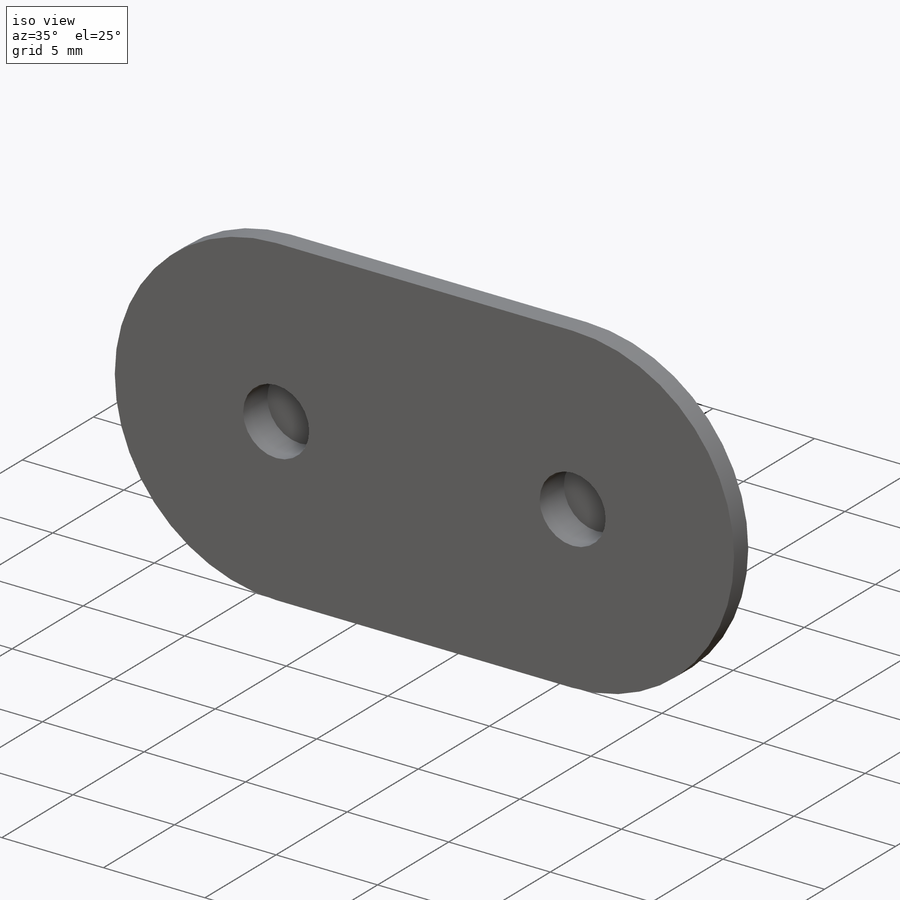
[diagram: iso view]
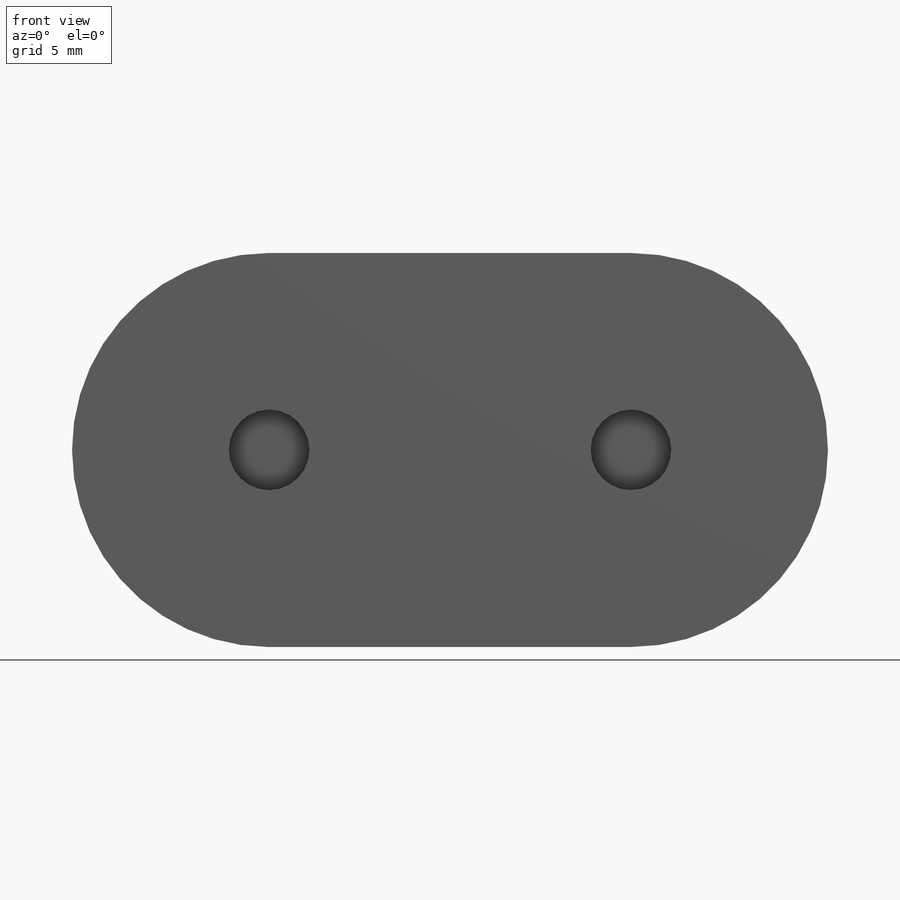
[diagram: front view]
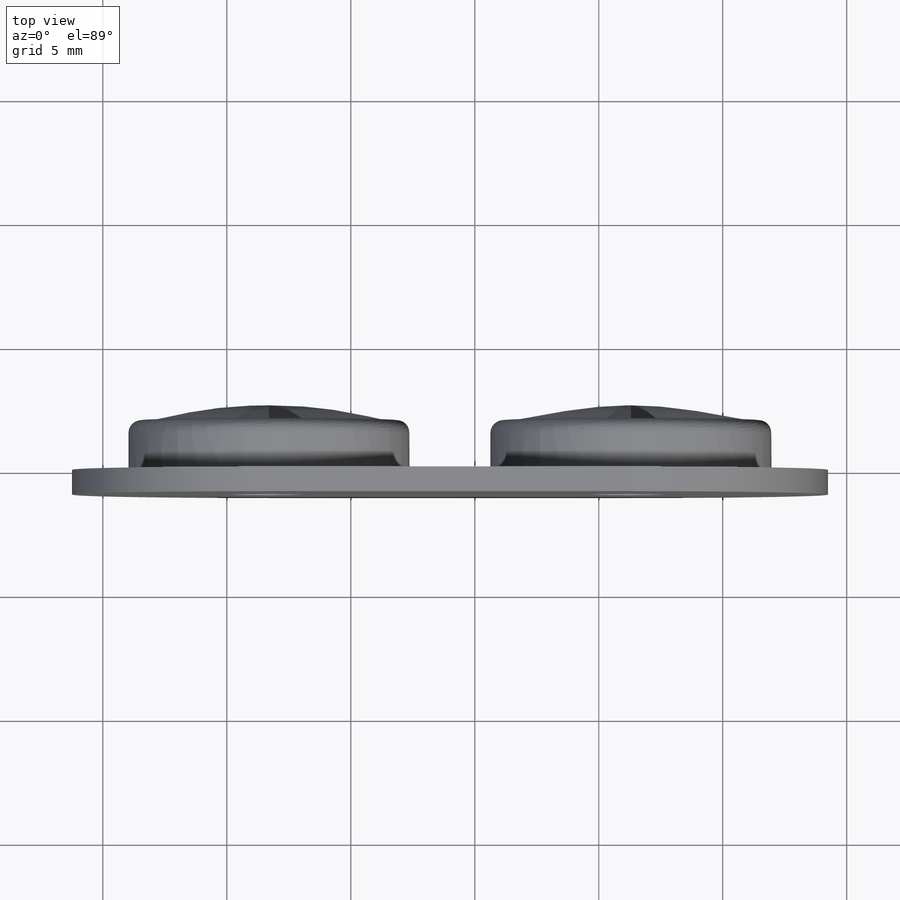
[diagram: top view]
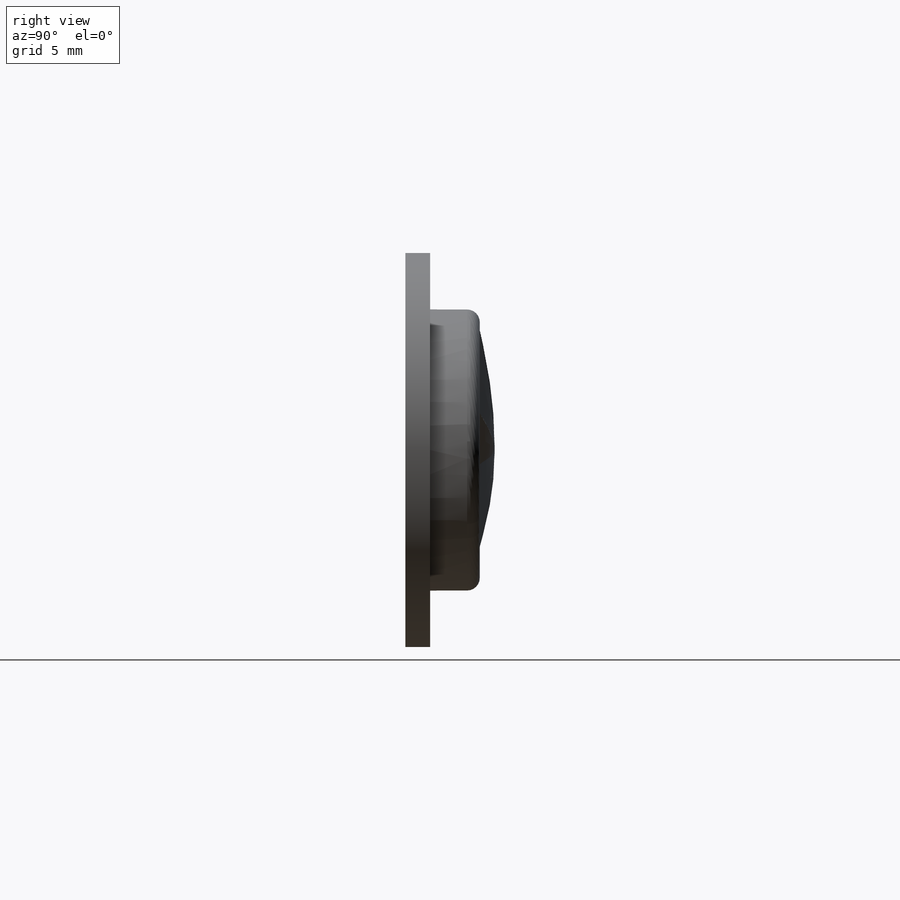
[diagram: right view]
SOLIDWORKS PART (.sldprt)
format: sldprt  version: not decoded by parser v0  size: 47,043,072 bytes
history: native  units: mm
features: extrude x191, fillet x49, sketch x8, material x1, cut_extrude x1, plane x1 (+13 scaffold rows collapsed; 1 parser-record rows omitted)
feature tree (265):
  scaffold x13  (default folders/planes/origin — collapsed)
  material  "Material <not specified>"
  sketch  "Sketch1"  dims[c1.D1=~12.355076mm c1.D2=~12.355076mm c1.D4=~12.355076mm c1.D5=~11.302892mm c1.D6=3.25mm c1.D7=3.25mm c1.D3=~14.59769mm c2.D4=0.508mm c2.D5=0.508mm c2.D8=~14.59769mm]
  extrude  "Boss-Extrude1"  Depth=1mm
  sketch  "Sketch2"  dims[D1=~11.339076mm]
  extrude  "Boss-Extrude2"  Depth=2mm
  sketch  "Sketch3"  dims[D1=3.25mm]
  cut_extrude  "Cut-Extrude1"  Depth=1.7mm
  fillet  "Fillet1"  Radius=0.508mm
  sketch  "Sketch4"  dims[c1.D1=~7.900172mm c1.D4=9.652mm c2.D1=~7.111499mm c3.D1=~35.340112deg c4.D1=~628.318531mm c4.D2=~7.533797mm c5.D2=~628.318531mm c5.D3=~7.51351mm c6.D3=~628.318531mm c6.D4=~7.514536mm c7.D4=~628.318531mm c8.D4=~2.870297mm]
  plane  "Plane1"  Offset=0.6mm
  sketch  "Sketch5"
  sketch  "Sketch7"  dims[c1.D1=9.652mm c1.D2=~4.545077mm c1.D3=~2.369647mm c2.D3=~872.664626mm c2.D4=~2.702715mm c3.D4=~926.989772mm c4.D4=~2.726608mm c4.D3=~2.413848mm c5.D3=~436.332313mm c5.D4=~3.950625mm c6.D4=~436.332313mm c6.D5=~2.737132mm c7.D5=~436.332313mm c7.D6=~3.950625mm c8.D6=~436.332313mm c8.D7=~2.737443mm c9.D7=~436.332313mm c9.D8=~3.950625mm c10.D8=~436.332313mm c10.D9=~2.661879mm c11.D9=~436.332313mm c11.D10=~3.950625mm c12.D10=~436.332313mm c12.D11=~2.636169mm c13.D11=~436.332313mm c13.D12=~2.661121mm c14.D12=~436.332313mm c14.D3=~2.655005mm c15.D3=~872.664626mm c16.D3=~2.606225mm c17.D3=~872.664626mm c18.D3=~2.635215mm c19.D3=~872.664626mm c20.D3=~2.635215mm c20.D2=5.0]
  sketch  "Sketch8"
  extrude  "_TNextInd"  [1 undecoded]
  extrude  "_TElemType"  [1 undecoded]
  extrude  "_TCompTag"  [1 undecoded]
  extrude  "_TNextInd"  [1 undecoded]
  extrude  "_TElemType"  [1 undecoded]
  extrude  "_TCompTag"  [1 undecoded]
  fillet  "_SCT1"  [1 undecoded]
  extrude  "_TElemType"  [1 undecoded]
  extrude  "_TID1"  [1 undecoded]
  extrude  "_TCompTag"  _TAttDefEntBased2=0deg  [1 undecoded]
  extrude  "_TElemType"  [1 undecoded]
  extrude  "_TID1"  [1 undecoded]
  extrude  "_TCompTag"  [1 undecoded]
  fillet  "_SCT2"  [1 undecoded]
  extrude  "_TElemType"  [1 undecoded]
  extrude  "_TID1"  [1 undecoded]
  extrude  "_TCompTag"  [1 undecoded]
  fillet  "_SCT3"  [1 undecoded]
  extrude  "_TElemType"  [1 undecoded]
  extrude  "_TID1"  [1 undecoded]
  extrude  "_TCompTag"  [1 undecoded]
  fillet  "_SCT4"  [1 undecoded]
  extrude  "_TElemType"  [1 undecoded]
  extrude  "_TElemTag"  [1 undecoded]
  extrude  "_TID1"  [1 undecoded]
  extrude  "_TID2"  [1 undecoded]
  extrude  "_TSegmType"  [1 undecoded]
  extrude  "_TCompTag"  _TAttDefNameBased2=0deg  [1 undecoded]
  extrude  "_TElemType"  [1 undecoded]
  extrude  "_TElemTag"  [1 undecoded]
  extrude  "_TID1"  [1 undecoded]
  extrude  "_TID2"  [1 undecoded]
  extrude  "_TSegmType"  [1 undecoded]
  extrude  "_TCompTag"  [1 undecoded]
  fillet  "_SCTDefault"  [1 undecoded]
  extrude  "_TElemType"  [1 undecoded]
  extrude  "_TElemTag"  [1 undecoded]
  extrude  "_TID1"  [1 undecoded]
  extrude  "_TID2"  [1 undecoded]
  extrude  "_TSegmType"  [1 undecoded]
  extrude  "_TCompTag"  [1 undecoded]
  parser-record x1  (decoder bookkeeping rows leaked as tree rows — omitted from the tree; the rows remain in map.json)
  sketch  "Sketch_MAC1-1_BUTTONS_STARS_1MM0BASE_2MM0BUTTONS_MILLING"
  fillet  "_SCT6"  [1 undecoded]
  extrude  "_TElemType"  [1 undecoded]
  extrude  "_TElemTag"  [1 undecoded]
  extrude  "_TID1"  [1 undecoded]
  extrude  "_TID2"  [1 undecoded]
  extrude  "_TSegmType"  [1 undecoded]
  extrude  "_TCompTag"  [1 undecoded]
  fillet  "_SCTBUTTONS_STARS_1MM0BASE_2MM0BUTTONS_MILLING"  [1 undecoded]
  extrude  "_TElemType"  [1 undecoded]
  extrude  "_TElemTag"  [1 undecoded]
  extrude  "_TID1"  [1 undecoded]
  extrude  "_TID2"  [1 undecoded]
  extrude  "_TSegmType"  [1 undecoded]
  extrude  "_TCompTag"  [1 undecoded]
  fillet  "_SCT7"  [1 undecoded]
  extrude  "_TElemType"  [1 undecoded]
  extrude  "_TElemTag"  [1 undecoded]
  extrude  "_TID1"  [1 undecoded]
  extrude  "_TID2"  [1 undecoded]
  extrude  "_TSegmType"  [1 undecoded]
  extrude  "_TCompTag"  [1 undecoded]
  fillet  "_SCTSketch1_2_3_1"  [1 undecoded]
  extrude  "_TElemType"  [1 undecoded]
  extrude  "_TElemTag"  [1 undecoded]
  extrude  "_TID1"  [1 undecoded]
  extrude  "_TID2"  [1 undecoded]
  extrude  "_TSegmType"  [1 undecoded]
  extrude  "_TCompTag"  [1 undecoded]
  fillet  "_SCT8"  [1 undecoded]
  extrude  "_TElemType"  [1 undecoded]
  extrude  "_TElemTag"  [1 undecoded]
  extrude  "_TID1"  [1 undecoded]
  extrude  "_TID2"  [1 undecoded]
  extrude  "_TSegmType"  [1 undecoded]
  extrude  "_TCompTag"  [1 undecoded]
  fillet  "_SCTSketch1_1_2_0"  [1 undecoded]
  extrude  "_TElemType"  [1 undecoded]
  extrude  "_TElemTag"  [1 undecoded]
  extrude  "_TID1"  [1 undecoded]
  extrude  "_TID2"  [1 undecoded]
  extrude  "_TSegmType"  [1 undecoded]
  extrude  "_TCompTag"  [1 undecoded]
  fillet  "_SCT9"  [1 undecoded]
  extrude  "_TElemType"  [1 undecoded]
  extrude  "_TElemTag"  [1 undecoded]
  extrude  "_TID1"  [1 undecoded]
  extrude  "_TID2"  [1 undecoded]
  extrude  "_TSegmType"  [1 undecoded]
  extrude  "_TCompTag"  [1 undecoded]
  fillet  "_SCTSketch1_3_4_1"  [1 undecoded]
  extrude  "_TElemType"  [1 undecoded]
  extrude  "_TElemTag"  [1 undecoded]
  extrude  "_TID1"  [1 undecoded]
  extrude  "_TID2"  [1 undecoded]
  extrude  "_TSegmType"  [1 undecoded]
  extrude  "_TCompTag"  [1 undecoded]
  fillet  "_SCT10"  [1 undecoded]
  extrude  "_TElemType"  [1 undecoded]
  extrude  "_TID1"  [1 undecoded]
  extrude  "_TCompTag"  [1 undecoded]
  fillet  "_SCT11"  [1 undecoded]
  extrude  "_TElemType"  [1 undecoded]
  extrude  "_TID1"  [1 undecoded]
  extrude  "_TCompTag"  [1 undecoded]
  fillet  "_SCT12"  [1 undecoded]
  extrude  "_TElemType"  [1 undecoded]
  extrude  "_TID1"  [1 undecoded]
  extrude  "_TCompTag"  [1 undecoded]
  fillet  "_SCT13"  [1 undecoded]
  extrude  "_TElemType"  [1 undecoded]
  extrude  "_TID1"  [1 undecoded]
  extrude  "_TCompTag"  [1 undecoded]
  fillet  "_SCT14"  [1 undecoded]
  extrude  "_TElemType"  [1 undecoded]
  extrude  "_TID1"  [1 undecoded]
  extrude  "_TCompTag"  [1 undecoded]
  fillet  "_SCT15"  [1 undecoded]
  extrude  "_TElemType"  [1 undecoded]
  extrude  "_TID1"  [1 undecoded]
  extrude  "_TCompTag"  [1 undecoded]
  fillet  "_SCT16"  [1 undecoded]
  extrude  "_TElemType"  [1 undecoded]
  extrude  "_TID1"  [1 undecoded]
  extrude  "_TCompTag"  [1 undecoded]
  fillet  "_SCT17"  [1 undecoded]
  extrude  "_TElemType"  [1 undecoded]
  extrude  "_TID1"  [1 undecoded]
  extrude  "_TCompTag"  [1 undecoded]
  fillet  "_SCT18"  [1 undecoded]
  extrude  "_TElemType"  [1 undecoded]
  extrude  "_TID1"  [1 undecoded]
  extrude  "_TCompTag"  [1 undecoded]
  fillet  "_SCT19"  [1 undecoded]
  extrude  "_TElemType"  [1 undecoded]
  extrude  "_TID1"  [1 undecoded]
  extrude  "_TCompTag"  [1 undecoded]
  fillet  "_SCT20"  [1 undecoded]
  extrude  "_TElemType"  [1 undecoded]
  extrude  "_TID1"  [1 undecoded]
  extrude  "_TCompTag"  [1 undecoded]
  fillet  "_SCT21"  [1 undecoded]
  extrude  "_TElemType"  [1 undecoded]
  extrude  "_TID1"  [1 undecoded]
  extrude  "_TCompTag"  [1 undecoded]
  fillet  "_SCT22"  [1 undecoded]
  extrude  "_TElemType"  [1 undecoded]
  extrude  "_TID1"  [1 undecoded]
  extrude  "_TCompTag"  [1 undecoded]
  fillet  "_SCT23"  [1 undecoded]
  extrude  "_TElemType"  [1 undecoded]
  extrude  "_TID1"  [1 undecoded]
  extrude  "_TCompTag"  [1 undecoded]
  fillet  "_SCT24"  [1 undecoded]
  extrude  "_TElemType"  [1 undecoded]
  extrude  "_TID1"  [1 undecoded]
  extrude  "_TCompTag"  [1 undecoded]
  fillet  "_SCT25"  [1 undecoded]
  extrude  "_TElemType"  [1 undecoded]
  extrude  "_TID1"  [1 undecoded]
  extrude  "_TCompTag"  [1 undecoded]
  fillet  "_SCT26"  [1 undecoded]
  extrude  "_TElemType"  [1 undecoded]
  extrude  "_TID1"  [1 undecoded]
  extrude  "_TCompTag"  [1 undecoded]
  fillet  "_SCT27"  [1 undecoded]
  extrude  "_TElemType"  [1 undecoded]
  extrude  "_TID1"  [1 undecoded]
  extrude  "_TCompTag"  [1 undecoded]
  fillet  "_SCT28"  [1 undecoded]
  extrude  "_TElemType"  [1 undecoded]
  extrude  "_TID1"  [1 undecoded]
  extrude  "_TCompTag"  [1 undecoded]
  fillet  "_SCT29"  [1 undecoded]
  extrude  "_TElemType"  [1 undecoded]
  extrude  "_TID1"  [1 undecoded]
  extrude  "_TCompTag"  [1 undecoded]
  fillet  "_SCT30"  [1 undecoded]
  extrude  "_TElemType"  [1 undecoded]
  extrude  "_TID1"  [1 undecoded]
  extrude  "_TCompTag"  [1 undecoded]
  fillet  "_SCT31"  [1 undecoded]
  extrude  "_TElemType"  [1 undecoded]
  extrude  "_TID1"  [1 undecoded]
  extrude  "_TCompTag"  [1 undecoded]
  fillet  "_SCT32"  [1 undecoded]
  extrude  "_TElemType"  [1 undecoded]
  extrude  "_TID1"  [1 undecoded]
  extrude  "_TCompTag"  [1 undecoded]
  fillet  "_SCT33"  [1 undecoded]
  extrude  "_TElemType"  [1 undecoded]
  extrude  "_TID1"  [1 undecoded]
  extrude  "_TCompTag"  [1 undecoded]
  fillet  "_SCT34"  [1 undecoded]
  extrude  "_TElemType"  [1 undecoded]
  extrude  "_TID1"  [1 undecoded]
  extrude  "_TCompTag"  [1 undecoded]
  fillet  "_SCT35"  [1 undecoded]
  extrude  "_TElemType"  [1 undecoded]
  extrude  "_TID1"  [1 undecoded]
  extrude  "_TCompTag"  [1 undecoded]
  fillet  "_SCT36"  [1 undecoded]
  extrude  "_TElemType"  [1 undecoded]
  extrude  "_TID1"  [1 undecoded]
  extrude  "_TCompTag"  [1 undecoded]
  fillet  "_SCT37"  [1 undecoded]
  extrude  "_TElemType"  [1 undecoded]
  extrude  "_TID1"  [1 undecoded]
  extrude  "_TCompTag"  [1 undecoded]
  fillet  "_SCT38"  [1 undecoded]
  extrude  "_TElemType"  [1 undecoded]
  extrude  "_TID1"  [1 undecoded]
  extrude  "_TCompTag"  [1 undecoded]
  fillet  "_SCT39"  [1 undecoded]
  extrude  "_TElemType"  [1 undecoded]
  extrude  "_TID1"  [1 undecoded]
  extrude  "_TCompTag"  [1 undecoded]
  fillet  "_SCT40"  [1 undecoded]
  extrude  "_TElemType"  [1 undecoded]
  extrude  "_TID1"  [1 undecoded]
  extrude  "_TCompTag"  [1 undecoded]
  fillet  "_SCT41"  [1 undecoded]
  extrude  "_TElemType"  [1 undecoded]
  extrude  "_TID1"  [1 undecoded]
  extrude  "_TCompTag"  [1 undecoded]
  fillet  "_SCT42"  [1 undecoded]
  extrude  "_TElemType"  [1 undecoded]
  extrude  "_TID1"  [1 undecoded]
  extrude  "_TCompTag"  [1 undecoded]
  fillet  "_SCT43"  [1 undecoded]
  extrude  "_TElemType"  [1 undecoded]
  extrude  "_TID1"  [1 undecoded]
  extrude  "_TCompTag"  [1 undecoded]
  fillet  "_SCT44"  [1 undecoded]
  extrude  "_TElemType"  [1 undecoded]
  extrude  "_TID1"  [1 undecoded]
  extrude  "_TCompTag"  [1 undecoded]
decode coverage: 11 of 249 modeling features carry decoded parameters
note: ~ marks probable driven/reference dimensions
note: 237 parameter values undecoded
summary: no parameter record found for 237 features
note: suppression state not decoded; provenance and decode notes live in map.json
